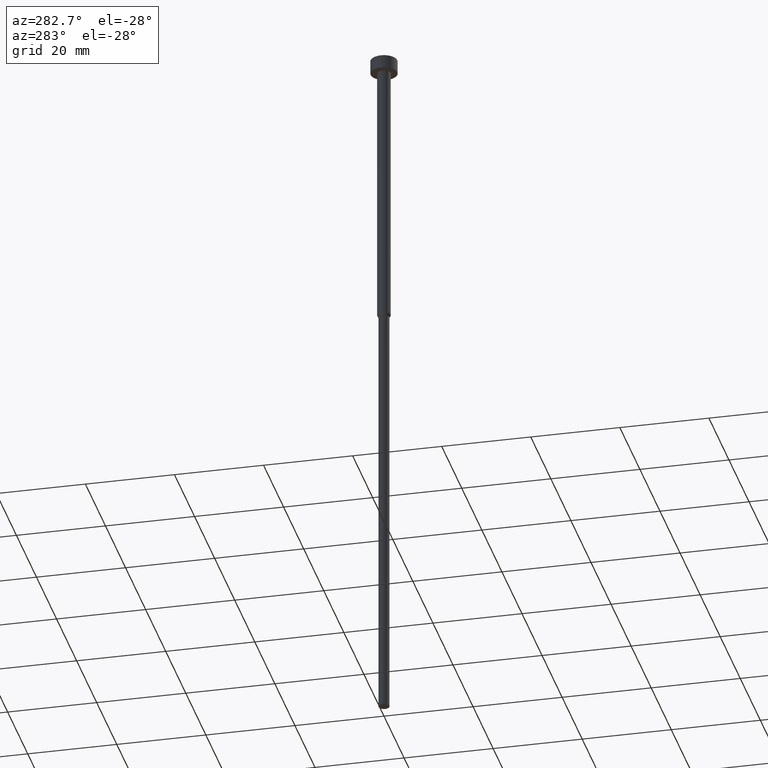
[diagram: clean part render]
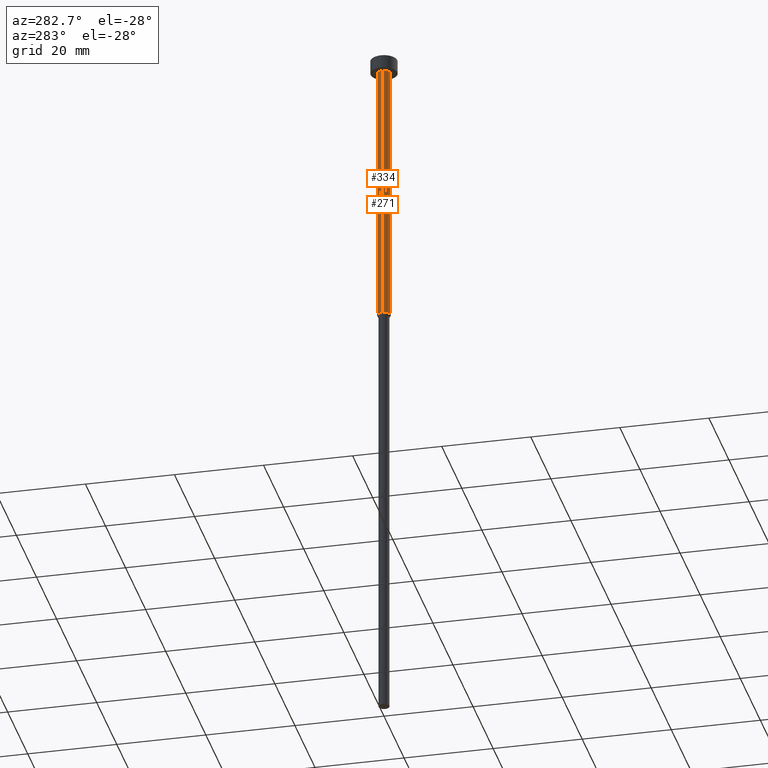
[diagram: same view with one multi-face feature highlighted, each face labeled with its STEP entity id]
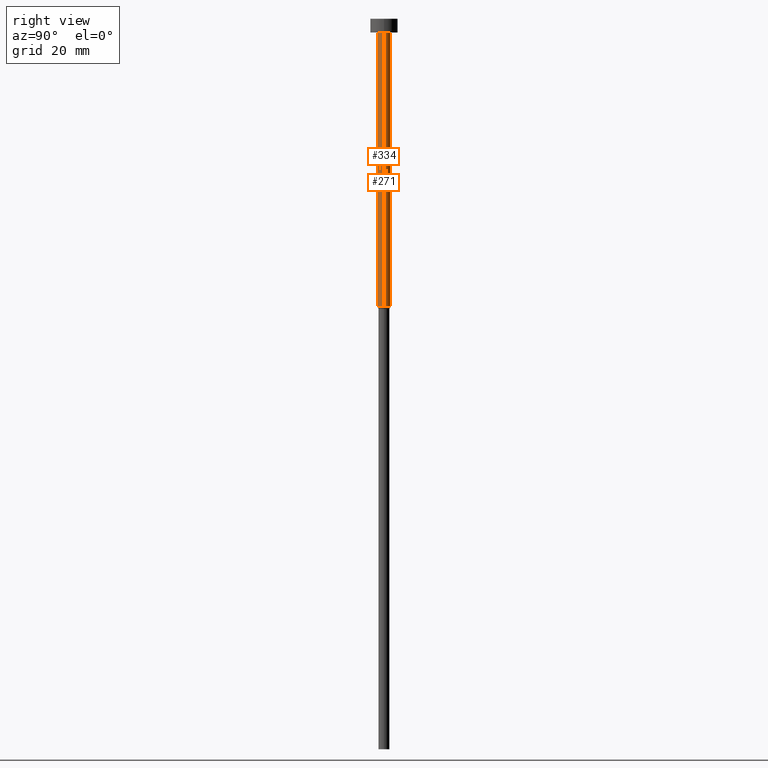
[diagram: same view with one multi-face feature highlighted, each face labeled with its STEP entity id]
A machine part, auxiliary view. The highlighted faces form ONE feature: a constant-radius fillet chain: 2 tangent blend faces with common blend radius 1.5 mm. The faces share edges in the B-rep.
A second angle (right view) of the same feature is appended — it is thin or edge-on in the first view.
Their STEP definitions:
[1] entity #334 (Cylinder):
#2 = VECTOR ( 'NONE', #180, 1000.000000000000000 ) ;
#3 = VERTEX_POINT ( 'NONE', #332 ) ;
#6 = EDGE_CURVE ( 'NONE', #333, #145, #274, .T. ) ;
#11 = EDGE_LOOP ( 'NONE', ( #273, #87, #147, #197 ) ) ;
#29 = CARTESIAN_POINT ( 'NONE',  ( -1.500000000000000000, 1.836970198721029934E-16, 0.000000000000000000 ) ) ;
#37 = LINE ( 'NONE', #288, #2 ) ;
#44 = CARTESIAN_POINT ( 'NONE',  ( 0.000000000000000000, 0.000000000000000000, -3.000000000000000888 ) ) ;
#45 = AXIS2_PLACEMENT_3D ( 'NONE', #44, #239, #337 ) ;
#70 = EDGE_CURVE ( 'NONE', #145, #3, #188, .T. ) ;
#87 = ORIENTED_EDGE ( 'NONE', *, *, #216, .T. ) ;
#106 = AXIS2_PLACEMENT_3D ( 'NONE', #320, #214, #187 ) ;
#145 = VERTEX_POINT ( 'NONE', #151 ) ;
#147 = ORIENTED_EDGE ( 'NONE', *, *, #212, .T. ) ;
#149 = VECTOR ( 'NONE', #277, 1000.000000000000000 ) ;
#151 = CARTESIAN_POINT ( 'NONE',  ( -1.500000000000000000, 1.836970198721029934E-16, -3.000000000000000888 ) ) ;
#154 = VERTEX_POINT ( 'NONE', #209 ) ;
#162 = CARTESIAN_POINT ( 'NONE',  ( -1.500000000000000000, 1.836970198721029934E-16, -63.00000000000000000 ) ) ;
#164 = CIRCLE ( 'NONE', #341, 1.500000000000000000 ) ;
#180 = DIRECTION ( 'NONE',  ( -0.000000000000000000, -0.000000000000000000, 1.000000000000000000 ) ) ;
#184 = FACE_OUTER_BOUND ( 'NONE', #11, .T. ) ;
#187 = DIRECTION ( 'NONE',  ( 1.000000000000000000, 0.000000000000000000, 0.000000000000000000 ) ) ;
#188 = CIRCLE ( 'NONE', #45, 1.500000000000000000 ) ;
#197 = ORIENTED_EDGE ( 'NONE', *, *, #70, .F. ) ;
#209 = CARTESIAN_POINT ( 'NONE',  ( 1.500000000000000000, 0.000000000000000000, -63.00000000000000000 ) ) ;
#212 = EDGE_CURVE ( 'NONE', #154, #3, #37, .T. ) ;
#214 = DIRECTION ( 'NONE',  ( -0.000000000000000000, -0.000000000000000000, 1.000000000000000000 ) ) ;
#216 = EDGE_CURVE ( 'NONE', #333, #154, #164, .T. ) ;
#239 = DIRECTION ( 'NONE',  ( -0.000000000000000000, -0.000000000000000000, 1.000000000000000000 ) ) ;
#267 = CARTESIAN_POINT ( 'NONE',  ( 0.000000000000000000, 0.000000000000000000, -63.00000000000000000 ) ) ;
#273 = ORIENTED_EDGE ( 'NONE', *, *, #6, .F. ) ;
#274 = LINE ( 'NONE', #29, #149 ) ;
#277 = DIRECTION ( 'NONE',  ( -0.000000000000000000, -0.000000000000000000, 1.000000000000000000 ) ) ;
#287 = DIRECTION ( 'NONE',  ( -0.000000000000000000, -0.000000000000000000, 1.000000000000000000 ) ) ;
#288 = CARTESIAN_POINT ( 'NONE',  ( 1.500000000000000000, 0.000000000000000000, 0.000000000000000000 ) ) ;
#312 = DIRECTION ( 'NONE',  ( 1.000000000000000000, 0.000000000000000000, 0.000000000000000000 ) ) ;
#320 = CARTESIAN_POINT ( 'NONE',  ( 0.000000000000000000, 0.000000000000000000, 0.000000000000000000 ) ) ;
#332 = CARTESIAN_POINT ( 'NONE',  ( 1.500000000000000000, 0.000000000000000000, -3.000000000000000888 ) ) ;
#333 = VERTEX_POINT ( 'NONE', #162 ) ;
#334 = ADVANCED_FACE ( 'NONE', ( #184 ), #350, .T. ) ;
#337 = DIRECTION ( 'NONE',  ( 1.000000000000000000, 0.000000000000000000, 0.000000000000000000 ) ) ;
#341 = AXIS2_PLACEMENT_3D ( 'NONE', #267, #287, #312 ) ;
#350 = CYLINDRICAL_SURFACE ( 'NONE', #106, 1.500000000000000000 ) ;
[2] entity #271 (Cylinder):
#2 = VECTOR ( 'NONE', #180, 1000.000000000000000 ) ;
#3 = VERTEX_POINT ( 'NONE', #332 ) ;
#6 = EDGE_CURVE ( 'NONE', #333, #145, #274, .T. ) ;
#18 = DIRECTION ( 'NONE',  ( 1.000000000000000000, 0.000000000000000000, 0.000000000000000000 ) ) ;
#29 = CARTESIAN_POINT ( 'NONE',  ( -1.500000000000000000, 1.836970198721029934E-16, 0.000000000000000000 ) ) ;
#36 = EDGE_CURVE ( 'NONE', #154, #333, #354, .T. ) ;
#37 = LINE ( 'NONE', #288, #2 ) ;
#40 = AXIS2_PLACEMENT_3D ( 'NONE', #133, #72, #240 ) ;
#49 = CYLINDRICAL_SURFACE ( 'NONE', #40, 1.500000000000000000 ) ;
#54 = DIRECTION ( 'NONE',  ( -0.000000000000000000, -0.000000000000000000, 1.000000000000000000 ) ) ;
#72 = DIRECTION ( 'NONE',  ( -0.000000000000000000, -0.000000000000000000, 1.000000000000000000 ) ) ;
#95 = ORIENTED_EDGE ( 'NONE', *, *, #6, .T. ) ;
#101 = DIRECTION ( 'NONE',  ( -0.000000000000000000, -0.000000000000000000, 1.000000000000000000 ) ) ;
#118 = EDGE_LOOP ( 'NONE', ( #310, #95, #195, #228 ) ) ;
#133 = CARTESIAN_POINT ( 'NONE',  ( 0.000000000000000000, 0.000000000000000000, 0.000000000000000000 ) ) ;
#143 = DIRECTION ( 'NONE',  ( 1.000000000000000000, 0.000000000000000000, 0.000000000000000000 ) ) ;
#145 = VERTEX_POINT ( 'NONE', #151 ) ;
#149 = VECTOR ( 'NONE', #277, 1000.000000000000000 ) ;
#151 = CARTESIAN_POINT ( 'NONE',  ( -1.500000000000000000, 1.836970198721029934E-16, -3.000000000000000888 ) ) ;
#154 = VERTEX_POINT ( 'NONE', #209 ) ;
#157 = AXIS2_PLACEMENT_3D ( 'NONE', #202, #54, #143 ) ;
#162 = CARTESIAN_POINT ( 'NONE',  ( -1.500000000000000000, 1.836970198721029934E-16, -63.00000000000000000 ) ) ;
#180 = DIRECTION ( 'NONE',  ( -0.000000000000000000, -0.000000000000000000, 1.000000000000000000 ) ) ;
#194 = AXIS2_PLACEMENT_3D ( 'NONE', #345, #101, #18 ) ;
#195 = ORIENTED_EDGE ( 'NONE', *, *, #243, .F. ) ;
#202 = CARTESIAN_POINT ( 'NONE',  ( 0.000000000000000000, 0.000000000000000000, -63.00000000000000000 ) ) ;
#209 = CARTESIAN_POINT ( 'NONE',  ( 1.500000000000000000, 0.000000000000000000, -63.00000000000000000 ) ) ;
#212 = EDGE_CURVE ( 'NONE', #154, #3, #37, .T. ) ;
#219 = CIRCLE ( 'NONE', #194, 1.500000000000000000 ) ;
#228 = ORIENTED_EDGE ( 'NONE', *, *, #212, .F. ) ;
#240 = DIRECTION ( 'NONE',  ( 1.000000000000000000, 0.000000000000000000, 0.000000000000000000 ) ) ;
#243 = EDGE_CURVE ( 'NONE', #3, #145, #219, .T. ) ;
#271 = ADVANCED_FACE ( 'NONE', ( #291 ), #49, .T. ) ;
#274 = LINE ( 'NONE', #29, #149 ) ;
#277 = DIRECTION ( 'NONE',  ( -0.000000000000000000, -0.000000000000000000, 1.000000000000000000 ) ) ;
#288 = CARTESIAN_POINT ( 'NONE',  ( 1.500000000000000000, 0.000000000000000000, 0.000000000000000000 ) ) ;
#291 = FACE_OUTER_BOUND ( 'NONE', #118, .T. ) ;
#310 = ORIENTED_EDGE ( 'NONE', *, *, #36, .T. ) ;
#332 = CARTESIAN_POINT ( 'NONE',  ( 1.500000000000000000, 0.000000000000000000, -3.000000000000000888 ) ) ;
#333 = VERTEX_POINT ( 'NONE', #162 ) ;
#345 = CARTESIAN_POINT ( 'NONE',  ( 0.000000000000000000, 0.000000000000000000, -3.000000000000000888 ) ) ;
#354 = CIRCLE ( 'NONE', #157, 1.500000000000000000 ) ;